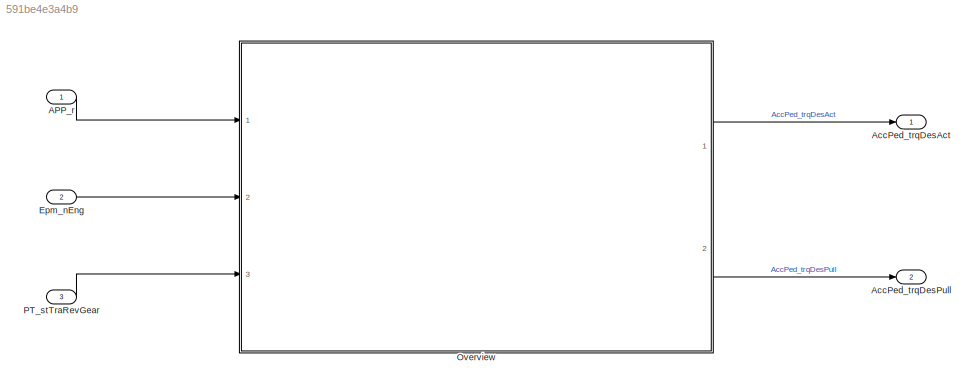
MODEL slx_591be4e3a4b9
KIND model
CONFIG AbsTol = auto
CONFIG EnableMultiTasking = off
CONFIG FixedStep = 0.001
CONFIG MaxStep = auto
CONFIG MinStep = auto
CONFIG RelTol = 1e-3
CONFIG SampleTimeConstraint = Unconstrained
CONFIG Solver = FixedStepDiscrete
CONFIG SolverName = FixedStepDiscrete
CONFIG StartTime = 0.0
CONFIG StopTime = Inf
BLOCK [Inport] APP_r
  Description = Minimum wheel torque from the engine
  IconDisplay = Port number
  OutDataTypeStr = Percent
  OutMax = 100
  OutMin = 0
  PortDimensions = [1 1]
  Unit = Nm
BLOCK [Outport] AccPed_trqDesAct
  IconDisplay = Port number
BLOCK [Outport] AccPed_trqDesPull
  IconDisplay = Port number
  Port = 2
BLOCK [Inport] Epm_nEng
  Description = Acceleration pedal sensor 1 value after fault handling
  IconDisplay = Port number
  OutDataTypeStr = ERPM
  OutMax = 6000
  OutMin = 0
  Port = 2
  PortDimensions = [1 1]
  Unit = %
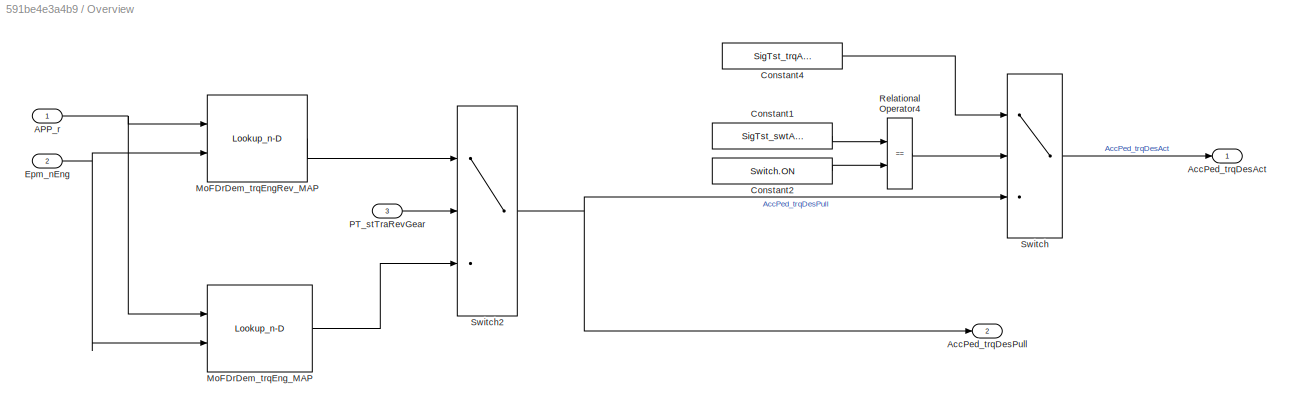
BLOCK [SubSystem] Overview
  Ports = [3, 2]
  RequestExecContextInheritance = off
BLOCK [Inport] Overview/APP_r
  IconDisplay = Port number
  Tag = %
BLOCK [Outport] Overview/AccPed_trqDesAct
  IconDisplay = Port number
  Tag = Nm
BLOCK [Outport] Overview/AccPed_trqDesPull
  IconDisplay = Port number
  Port = 2
  Tag = Nm
BLOCK [Constant] Overview/Constant1
  Value = SigTst_swtAccPed_C
BLOCK [Constant] Overview/Constant2
  OutDataTypeStr = Inherit: Inherit via back propagation
  Value = Switch.ON
BLOCK [Constant] Overview/Constant4
  Value = SigTst_trqAccPed_C
BLOCK [Inport] Overview/Epm_nEng
  IconDisplay = Port number
  Port = 2
  Tag = rpm
BLOCK [Lookup_n-D] Overview/MoFDrDem_trqEngRev_MAP
  BeginIndexSearchUsingPreviousIndexResult = on
  BreakpointsForDimension1 = MoFDrDem_trqEngRev_MAPY
  BreakpointsForDimension2 = MoFDrDem_trqEngRev_MAPX
  ExtrapMethod = Clip
  IndexSearchMethod = Linear search
  InputSameDT = off
  InternalRulePriority = Speed
  OutDataTypeStr = Inherit: Inherit via back propagation
  Ports = [2, 1]
  SaturateOnIntegerOverflow = on
  Table = MoFDrDem_trqEngRev_MAP
  UseLastTableValue = on
BLOCK [Lookup_n-D] Overview/MoFDrDem_trqEng_MAP
  BeginIndexSearchUsingPreviousIndexResult = on
  BreakpointsForDimension1 = MoFDrDem_trqEng_MAPY
  BreakpointsForDimension2 = MoFDrDem_trqEng_MAPX
  ExtrapMethod = Clip
  IndexSearchMethod = Linear search
  InputSameDT = off
  InternalRulePriority = Speed
  OutDataTypeStr = Inherit: Inherit via back propagation
  Ports = [2, 1]
  SaturateOnIntegerOverflow = on
  Table = MoFDrDem_trqEng_MAP
  UseLastTableValue = on
BLOCK [Inport] Overview/PT_stTraRevGear
  IconDisplay = Port number
  Port = 3
BLOCK [RelationalOperator] Overview/Relational Operator4
  Operator = ==
  OutDataTypeStr = boolean
  Ports = [2, 1]
  RndMeth = Simplest
BLOCK [Switch] Overview/Switch
  Criteria = u2 ~= 0
  SaturateOnIntegerOverflow = off
BLOCK [Switch] Overview/Switch2
  Criteria = u2 ~= 0
  SaturateOnIntegerOverflow = off
BLOCK [Inport] PT_stTraRevGear
  Description = Switch to activate DrvDem
  IconDisplay = Port number
  OutDataTypeStr = boolean
  OutMax = 1
  OutMin = 0
  Port = 3
  PortDimensions = [1 1]
LINE APP_r:1 -> Overview:1
LINE Epm_nEng:1 -> Overview:2
NET Overview/APP_r:1 -> Overview/MoFDrDem_trqEngRev_MAP:1, Overview/MoFDrDem_trqEng_MAP:1
LINE Overview/Constant1:1 -> Overview/Relational Operator4:1
LINE Overview/Constant2:1 -> Overview/Relational Operator4:2
LINE Overview/Constant4:1 -> Overview/Switch:1
NET Overview/Epm_nEng:1 -> Overview/MoFDrDem_trqEngRev_MAP:2, Overview/MoFDrDem_trqEng_MAP:2
LINE Overview/MoFDrDem_trqEngRev_MAP:1 -> Overview/Switch2:1
LINE Overview/MoFDrDem_trqEng_MAP:1 -> Overview/Switch2:3
LINE Overview/PT_stTraRevGear:1 -> Overview/Switch2:2
LINE Overview/Relational Operator4:1 -> Overview/Switch:2
NET Overview/Switch2:1 -> Overview/AccPed_trqDesPull:1, Overview/Switch:3
LINE Overview/Switch:1 -> Overview/AccPed_trqDesAct:1
LINE Overview:1 -> AccPed_trqDesAct:1
LINE Overview:2 -> AccPed_trqDesPull:1
LINE PT_stTraRevGear:1 -> Overview:3
note: NET lines group one-source signal fan-out (src -> all destinations, sorted); 1:1 wires keep LINE
